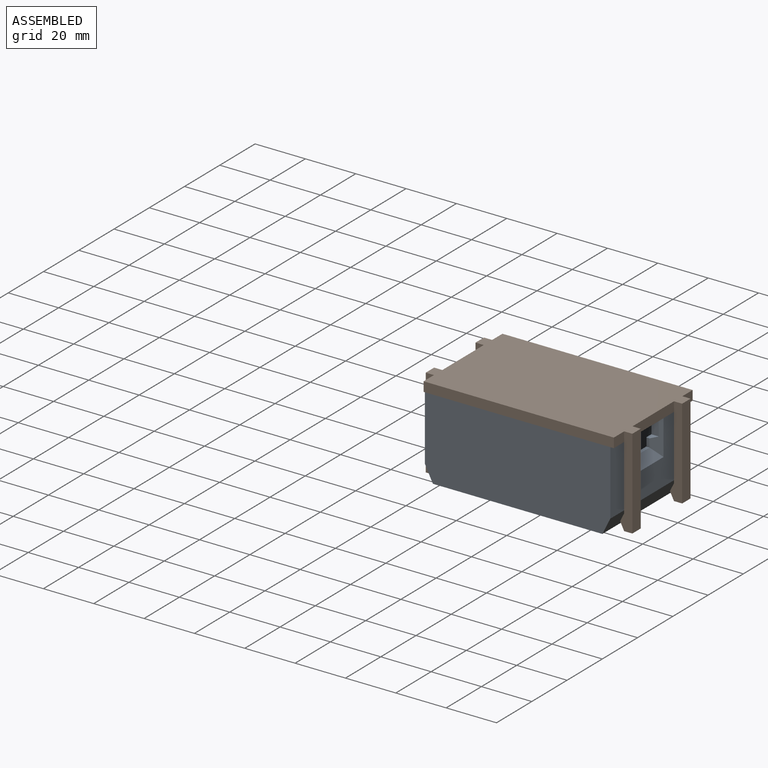
[diagram: assembled view]
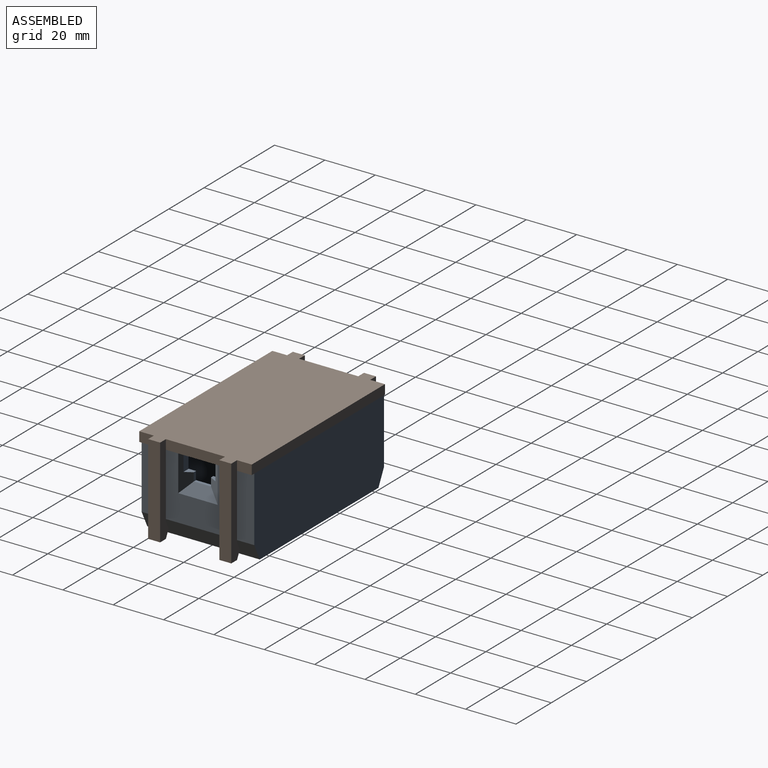
[diagram: assembled view, second angle]
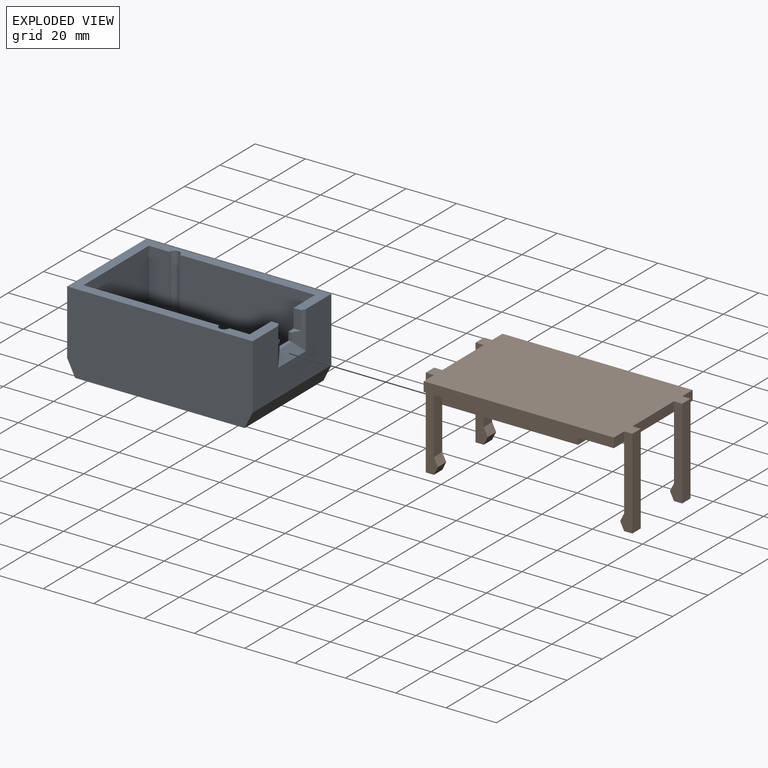
[diagram: exploded view]
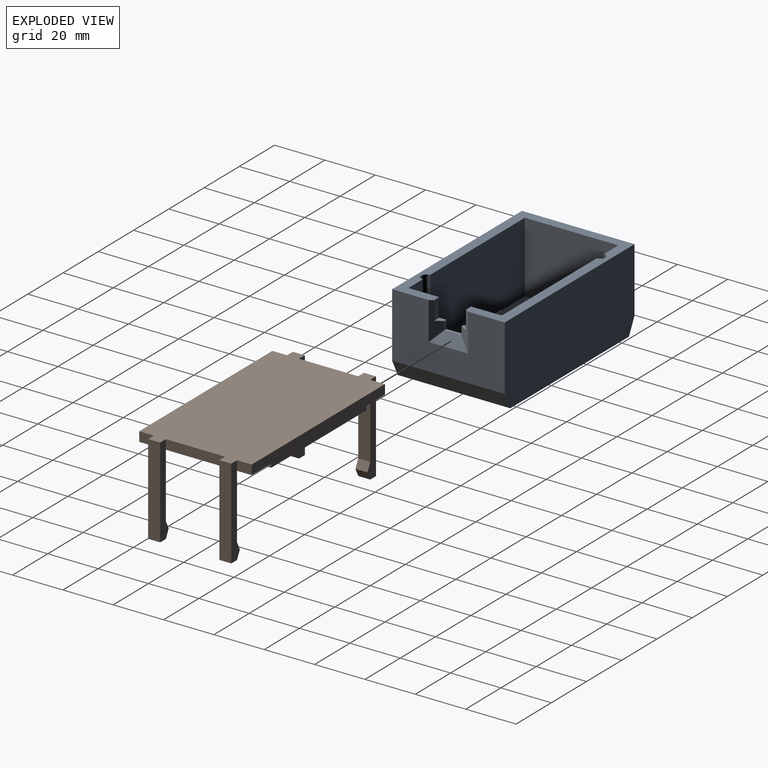
[diagram: exploded view, second angle]
ASSEMBLY  parts=2 mates=3
PART A: 27 faces, bbox 73.7x44.7x32 mm
  f0: plane 67.31x44.7mm, normal (0,0,-1), area 3009mm2, adj f1,f2,f25,f26
  f1: plane 73.66x32mm, normal (0,1,0), area 2337.3mm2, adj f0,f11,f12,f13,f25,f26
  f2: plane 73.66x32mm, normal (0,-1,0), area 2337.3mm2, adj f0,f11,f12,f13,f25,f26
  f3: plane 28.19x8.13mm, normal (0,-1,0), area 229.2mm2, adj f4,f9,f13,f14
  f4: plane 37.08x28.19mm, normal (1,0,0), area 1045.5mm2, adj f3,f5,f13,f14
  f5: plane 53.85x28.19mm, normal (0,1,0), area 1518.2mm2, adj f4,f10,f13,f14
  f6: plane 28.19x8.13mm, normal (0,1,0), area 229.2mm2, adj f7,f10,f13,f14
  f7: plane 37.08x28.19mm, normal (-1,0,0), area 929.4mm2, adj f6,f8,f13,f14,f15,f16,f17,f18
  f8: plane 53.85x28.19mm, normal (0,-1,0), area 1518.2mm2, adj f7,f9,f13,f14
  f9: cylinder r=2.03mm len=28.19mm, axis (0,0,-1), area 180mm2, adj f3,f8,f13,f14
  f10: cylinder r=2.03mm len=28.19mm, axis (0,0,-1), area 180mm2, adj f5,f6,f13,f14
  f11: plane 44.7x25.65mm, normal (-1,0,0), area 1146.8mm2, adj f1,f2,f13,f26
  f12: plane 44.7x25.65mm, normal (1,0,0), area 910.9mm2, adj f1,f2,f13,f22,f23,f24,f25
  f13: plane 73.66x44.7mm, normal (0,0,1), area 781.2mm2, adj f1,f2,f3,f4,f5,f6,f7,f8
  f14: plane 66.04x41.15mm, normal (0,0,1), area 2462mm2, adj f3,f4,f5,f6,f7,f8,f9,f10
  f15: plane 2.96x2.92mm, normal (0,0,1), area 6.2mm2, adj f7,f16,f17,f22
  f16: plane 7.37x2.96mm, normal (0,1,0), area 21.8mm2, adj f7,f13,f15,f22
  f17: plane 3.3x1.27mm, normal (0,1,0), area 4.2mm2, adj f7,f15,f18,f22
  f18: plane 6.86x1.27mm, normal (0,0,1), area 8.7mm2, adj f7,f17,f19,f23
  f19: plane 3.3x1.27mm, normal (0,-1,0), area 4.2mm2, adj f7,f18,f20,f24
  f20: plane 2.96x2.92mm, normal (0,0,1), area 6.2mm2, adj f7,f19,f21,f24
  f21: plane 7.37x2.96mm, normal (0,-1,0), area 21.8mm2, adj f7,f13,f20,f24
  f22: plane 15.07x4.4mm, normal (0.87,0.5,0), area 40.5mm2, adj f12,f13,f15,f16,f17,f23
  f23: plane 15.66x4.4mm, normal (0.87,0,0.5), area 57.2mm2, adj f12,f18,f22,f24
  f24: plane 15.07x4.4mm, normal (0.87,-0.5,0), area 40.5mm2, adj f12,f13,f19,f20,f21,f23
  f25: plane 44.7x6.35mm, normal (0.89,0,-0.45), area 317.4mm2, adj f0,f1,f2,f12
  f26: plane 44.7x6.35mm, normal (-0.89,0,-0.45), area 317.4mm2, adj f0,f1,f2,f11
PART B: 43 faces, bbox 82.1x44.7x35.8 mm
  f0: plane 25.65x4.76mm, normal (1,0,0), area 122.2mm2, adj f12,f37,f38,f42
  f1: plane 5.84x3.81mm, normal (-1,0,0), area 22.2mm2, adj f9,f12,f13,f38
  f2: plane 25.65x4.76mm, normal (1,0,0), area 122.2mm2, adj f12,f31,f33,f36
  f3: plane 23.5x3.81mm, normal (-1,0,0), area 89.5mm2, adj f12,f13,f31,f37
  f4: plane 25.65x4.76mm, normal (-1,0,0), area 122.2mm2, adj f12,f25,f27,f30
  f5: plane 5.84x3.81mm, normal (1,0,0), area 22.2mm2, adj f9,f12,f13,f27
  f6: plane 25.65x4.76mm, normal (-1,0,0), area 122.2mm2, adj f12,f19,f20,f24
  f7: plane 23.5x3.81mm, normal (1,0,0), area 89.5mm2, adj f12,f13,f19,f25
  f8: plane 5.84x3.81mm, normal (1,0,0), area 22.2mm2, adj f11,f12,f13,f20
  f9: plane 75.57x3.81mm, normal (0,1,0), area 287.9mm2, adj f1,f5,f12,f13
  f10: plane 5.84x3.81mm, normal (-1,0,0), area 22.2mm2, adj f11,f12,f13,f33
  f11: plane 75.57x3.81mm, normal (0,-1,0), area 287.9mm2, adj f8,f10,f12,f13
  f12: plane 75.57x44.7mm, normal (0,0,1), area 1431.3mm2, adj f0,f1,f2,f3,f4,f5,f6,f7
  f13: plane 82.07x44.7mm, normal (0,0,-1), area 3440mm2, adj f1,f3,f5,f7,f8,f9,f10,f11
  f14: plane 53.98x36.07mm, normal (0,0,1), area 1946.8mm2, adj f15,f16,f17,f18
  f15: plane 36.07x5.08mm, normal (1,0,0), area 183.2mm2, adj f12,f14,f16,f18
  f16: plane 53.98x5.08mm, normal (0,-1,0), area 274.2mm2, adj f12,f14,f15,f17
  f17: plane 36.07x5.08mm, normal (-1,0,0), area 183.2mm2, adj f12,f14,f16,f18
  f18: plane 53.98x5.08mm, normal (0,1,0), area 274.2mm2, adj f12,f14,f15,f17
  f19: plane 35.81x4.84mm, normal (0,1,0), area 121.5mm2, adj f6,f7,f13,f21,f22,f23,f24
  f20: plane 35.81x4.84mm, normal (0,-1,0), area 121.5mm2, adj f6,f8,f13,f21,f22,f23,f24
  f21: plane 35.81x4.76mm, normal (1,0,0), area 170.6mm2, adj f13,f19,f20,f22
  f22: plane 4.76x3.25mm, normal (0,0,1), area 15.5mm2, adj f19,f20,f21,f23
  f23: plane 4.76x3.18mm, normal (-0.89,0,0.45), area 16.9mm2, adj f19,f20,f22,f24
  f24: plane 4.76x3.18mm, normal (-0.89,0,-0.45), area 16.9mm2, adj f6,f19,f20,f23
  f25: plane 35.81x4.84mm, normal (0,-1,0), area 121.5mm2, adj f4,f7,f13,f26,f28,f29,f30
  f26: plane 35.81x4.76mm, normal (1,0,0), area 170.6mm2, adj f13,f25,f27,f28
  f27: plane 35.81x4.84mm, normal (0,1,0), area 121.5mm2, adj f4,f5,f13,f26,f28,f29,f30
  f28: plane 4.76x3.25mm, normal (0,0,1), area 15.5mm2, adj f25,f26,f27,f29
  f29: plane 4.76x3.18mm, normal (-0.89,0,0.45), area 16.9mm2, adj f25,f27,f28,f30
  f30: plane 4.76x3.18mm, normal (-0.89,0,-0.45), area 16.9mm2, adj f4,f25,f27,f29
  f31: plane 35.81x4.84mm, normal (0,1,0), area 121.5mm2, adj f2,f3,f13,f32,f34,f35,f36
  f32: plane 35.81x4.76mm, normal (-1,0,0), area 170.6mm2, adj f13,f31,f33,f34
  f33: plane 35.81x4.84mm, normal (0,-1,0), area 121.5mm2, adj f2,f10,f13,f32,f34,f35,f36
  f34: plane 4.76x3.25mm, normal (0,0,1), area 15.5mm2, adj f31,f32,f33,f35
  f35: plane 4.76x3.18mm, normal (0.89,0,0.45), area 16.9mm2, adj f31,f33,f34,f36
  f36: plane 4.76x3.18mm, normal (0.89,0,-0.45), area 16.9mm2, adj f2,f31,f33,f35
  f37: plane 35.81x4.84mm, normal (0,-1,0), area 121.5mm2, adj f0,f3,f13,f39,f40,f41,f42
  f38: plane 35.81x4.84mm, normal (0,1,0), area 121.5mm2, adj f0,f1,f13,f39,f40,f41,f42
  f39: plane 35.81x4.76mm, normal (-1,0,0), area 170.6mm2, adj f13,f37,f38,f40
  f40: plane 4.76x3.25mm, normal (0,0,1), area 15.5mm2, adj f37,f38,f39,f41
  f41: plane 4.76x3.18mm, normal (0.89,0,0.45), area 16.9mm2, adj f37,f38,f40,f42
  f42: plane 4.76x3.18mm, normal (0.89,0,-0.45), area 16.9mm2, adj f0,f37,f38,f41
PLACE A at identity fixed
PLACE B rot(axis=(1,0,0),180deg) t=(71.25,-3.81,35.81)mm
MATE planar B.f17 <-> A.f4  axis (-1,0,0) through (0,18.54,29.46)mm
MATE planar B.f12 <-> A.f13  axis (0,0,-1) through (0,18.54,32)mm
MATE planar B.f9 <-> A.f2  axis (0,-1,0) through (33.46,-3.81,33.91)mm
